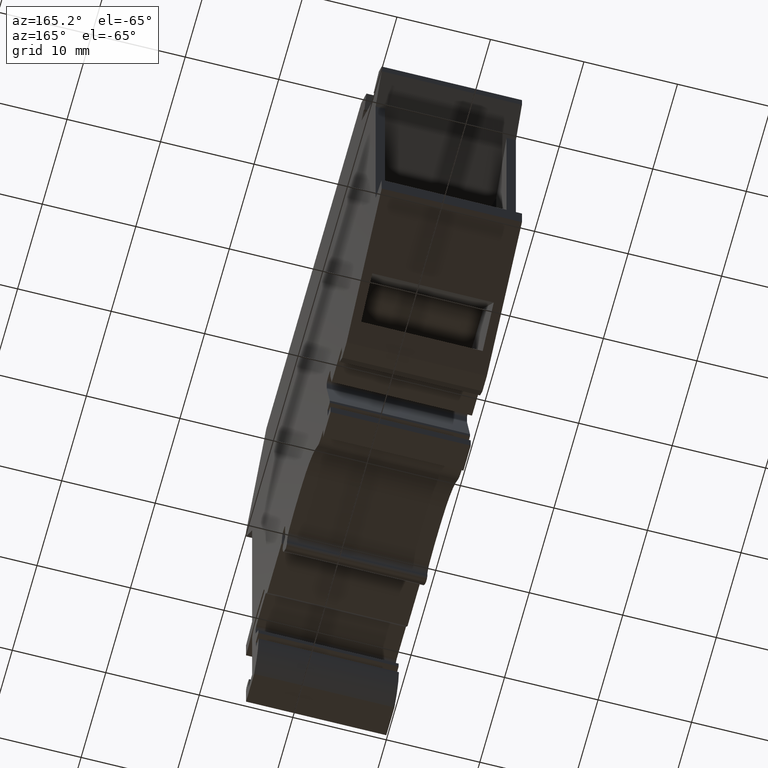
[diagram: clean part render]
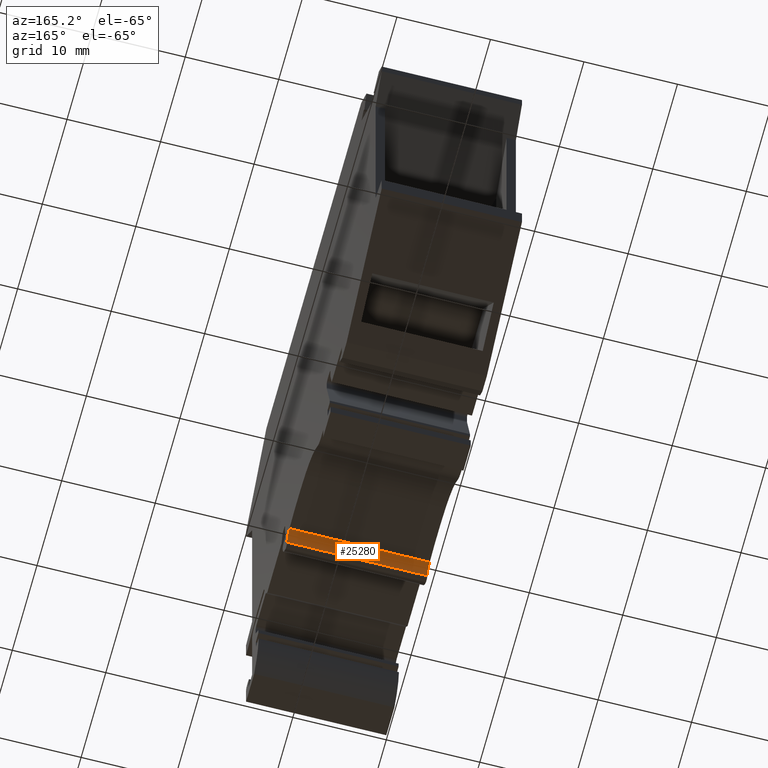
[diagram: same view with one face highlighted and labeled with its STEP entity id]
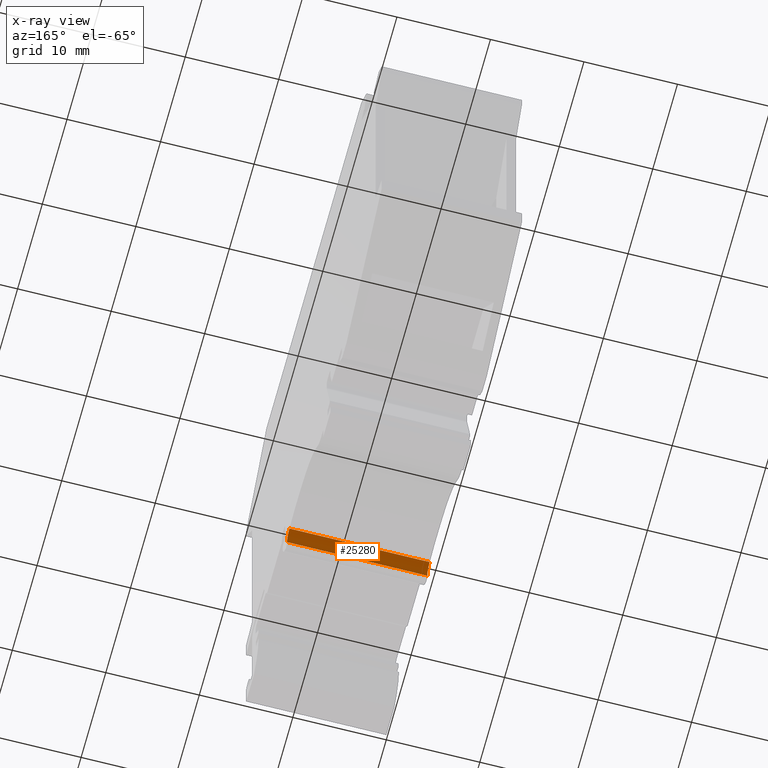
[diagram: x-ray of the same camera — body ghosted, the highlighted face saturated]
A machine part, auxiliary view. The second image highlights one B-rep face of the part: STEP entity #25280.
The next image is the same camera in x-ray: the body ghosted, the highlighted face saturated — about 0% of this face is hidden behind the body in this view.
In plain terms, the highlighted cylindrical surface (edge-blend (fillet) strip) has radius 1.2 mm, axis along (1, 0, 0).
Its self-contained STEP definition (entity closure, byte-faithful):
#3870=CARTESIAN_POINT('',(-81.9961672589181,262.322296968718,7.4));
#3880=VERTEX_POINT('',#3870);
#3910=CARTESIAN_POINT('',(-81.7732338213985,261.143186845601,7.4));
#3920=DIRECTION('',(0.,0.,1.));
#3930=DIRECTION('',(1.,0.,0.));
#3940=AXIS2_PLACEMENT_3D('',#3910,#3920,#3930);
#3950=CIRCLE('',#3940,1.2);
#3960=CARTESIAN_POINT('',(-82.9644828446532,260.998529441384,7.4));
#3970=VERTEX_POINT('',#3960);
#3980=EDGE_CURVE('',#3880,#3970,#3950,.T.);
#24840=CARTESIAN_POINT('',(-81.9961672589181,262.322296968718,-7.6));
#24850=VERTEX_POINT('',#24840);
#24880=CARTESIAN_POINT('',(-81.9961672589181,262.322296968718,7.4));
#24890=DIRECTION('',(0.,0.,-1.));
#24900=VECTOR('',#24890,1.);
#24910=LINE('',#24880,#24900);
#24920=EDGE_CURVE('',#3880,#24850,#24910,.T.);
#25040=CARTESIAN_POINT('',(-81.7732338213985,261.143186845601,7.4));
#25050=DIRECTION('',(0.,0.,1.));
#25060=DIRECTION('',(1.,0.,0.));
#25070=AXIS2_PLACEMENT_3D('',#25040,#25050,#25060);
#25080=CYLINDRICAL_SURFACE('',#25070,1.2);
#25090=ORIENTED_EDGE('',*,*,#3980,.T.);
#25100=ORIENTED_EDGE('',*,*,#24920,.F.);
#25110=CARTESIAN_POINT('',(-81.7732338213985,261.143186845601,-7.6));
#25120=DIRECTION('',(0.,0.,1.));
#25130=DIRECTION('',(1.,0.,0.));
#25140=AXIS2_PLACEMENT_3D('',#25110,#25120,#25130);
#25150=CIRCLE('',#25140,1.2);
#25160=CARTESIAN_POINT('',(-82.9644828446532,260.998529441384,-7.6));
#25170=VERTEX_POINT('',#25160);
#25180=EDGE_CURVE('',#24850,#25170,#25150,.T.);
#25190=ORIENTED_EDGE('',*,*,#25180,.F.);
#25200=CARTESIAN_POINT('',(-82.9644828446532,260.998529441384,7.4));
#25210=DIRECTION('',(0.,0.,-1.));
#25220=VECTOR('',#25210,1.);
#25230=LINE('',#25200,#25220);
#25240=EDGE_CURVE('',#3970,#25170,#25230,.T.);
#25250=ORIENTED_EDGE('',*,*,#25240,.T.);
#25260=EDGE_LOOP('',(#25250,#25190,#25100,#25090));
#25270=FACE_OUTER_BOUND('',#25260,.T.);
#25280=ADVANCED_FACE('',(#25270),#25080,.F.);